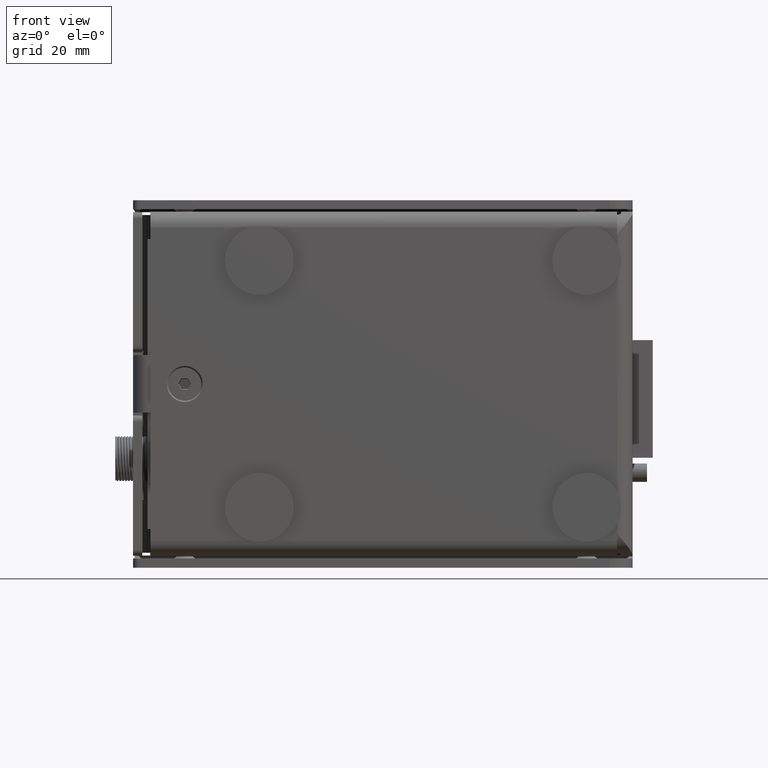
[diagram: clean part render]
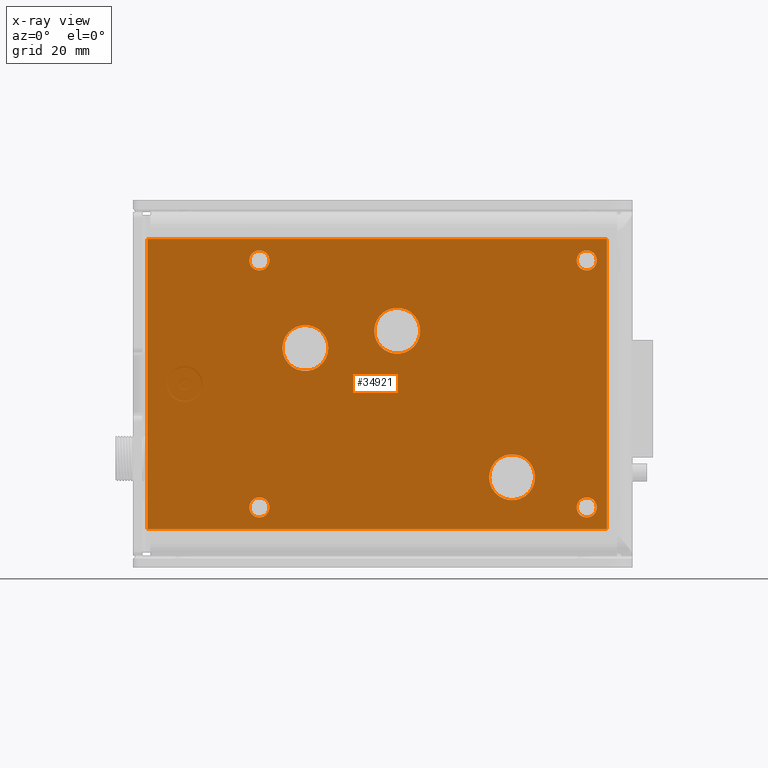
[diagram: x-ray — body ghosted, one internal face saturated and labeled with its STEP entity id]
A machine part, front view, then the same camera in x-ray: the body is ghosted and one INTERNAL B-rep face — a face not visible from any outside direction — is saturated and labeled: STEP entity #34921.
In plain terms, the highlighted planar face has unit normal (0, -1, -0).
Its self-contained STEP definition (entity closure, byte-faithful):
#209 = ORIENTED_EDGE ( 'NONE', *, *, #49311, .T. ) ;
#1018 = EDGE_CURVE ( 'NONE', #69272, #68647, #8504, .T. ) ;
#1236 = DIRECTION ( 'NONE',  ( -1.000000000000000000, 0.0000000000000000000, 0.0000000000000000000 ) ) ;
#1278 = ORIENTED_EDGE ( 'NONE', *, *, #20421, .T. ) ;
#1501 = LINE ( 'NONE', #22551, #15646 ) ;
#2058 = CARTESIAN_POINT ( 'NONE',  ( -10.30300153493772400, 28.17412546596318300, 6.250000000000121700 ) ) ;
#2371 = DIRECTION ( 'NONE',  ( -9.051608351169608300E-018, 1.000000000000000000, 6.083789481314589600E-018 ) ) ;
#2915 = FACE_OUTER_BOUND ( 'NONE', #8466, .T. ) ;
#3125 = CARTESIAN_POINT ( 'NONE',  ( 29.69699846506279800, 28.17412546596318300, -16.25000000000016300 ) ) ;
#5222 = VERTEX_POINT ( 'NONE', #21833 ) ;
#5411 = DIRECTION ( 'NONE',  ( -1.000000000000000000, 0.0000000000000000000, 0.0000000000000000000 ) ) ;
#5781 = CARTESIAN_POINT ( 'NONE',  ( 38.69699846506279100, 28.17412546596318300, 21.50000000000020600 ) ) ;
#6286 = AXIS2_PLACEMENT_3D ( 'NONE', #19122, #51970, #35978 ) ;
#6945 = EDGE_LOOP ( 'NONE', ( #33854, #59130 ) ) ;
#7050 = CARTESIAN_POINT ( 'NONE',  ( 42.19699846506279100, 28.17412546596318600, -25.25000000000035500 ) ) ;
#7279 = EDGE_CURVE ( 'NONE', #9228, #45597, #56136, .T. ) ;
#7768 = ORIENTED_EDGE ( 'NONE', *, *, #63933, .T. ) ;
#7812 = AXIS2_PLACEMENT_3D ( 'NONE', #41694, #63529, #63313 ) ;
#7937 = FACE_BOUND ( 'NONE', #9195, .T. ) ;
#8466 = EDGE_LOOP ( 'NONE', ( #209, #7768, #64048, #1278 ) ) ;
#8504 = CIRCLE ( 'NONE', #7812, 1.750000000000022400 ) ;
#8587 = CARTESIAN_POINT ( 'NONE',  ( -10.30300153493772400, 28.17412546596318300, 6.250000000000121700 ) ) ;
#8707 = CIRCLE ( 'NONE', #17713, 1.750000000000022400 ) ;
#9195 = EDGE_LOOP ( 'NONE', ( #25107, #17819 ) ) ;
#9228 = VERTEX_POINT ( 'NONE', #3125 ) ;
#9453 = DIRECTION ( 'NONE',  ( -9.051608351169608300E-018, 1.000000000000000000, 6.083789481314589600E-018 ) ) ;
#10610 = CARTESIAN_POINT ( 'NONE',  ( -18.30300153493777400, 28.17412546596318300, 21.50000000000020600 ) ) ;
#10785 = CIRCLE ( 'NONE', #42452, 1.750000000000022400 ) ;
#11570 = DIRECTION ( 'NONE',  ( 1.000000000000000000, 0.0000000000000000000, 0.0000000000000000000 ) ) ;
#11786 = CARTESIAN_POINT ( 'NONE',  ( 40.44699846506281200, 28.17412546596318300, 21.50000000000020600 ) ) ;
#13117 = LINE ( 'NONE', #34396, #19870 ) ;
#13590 = CARTESIAN_POINT ( 'NONE',  ( -18.30300153493777400, 28.17412546596318300, 21.50000000000020600 ) ) ;
#13761 = FACE_BOUND ( 'NONE', #39740, .T. ) ;
#14699 = DIRECTION ( 'NONE',  ( 1.000000000000000000, 0.0000000000000000000, 0.0000000000000000000 ) ) ;
#14732 = CIRCLE ( 'NONE', #65665, 1.750000000000018900 ) ;
#15126 = CARTESIAN_POINT ( 'NONE',  ( 40.44699846506281200, 28.17412546596318600, -21.50000000000019900 ) ) ;
#15191 = CARTESIAN_POINT ( 'NONE',  ( 38.69699846506279100, 28.17412546596318600, -21.50000000000019900 ) ) ;
#15646 = VECTOR ( 'NONE', #60346, 1000.000000000000000 ) ;
#15809 = CARTESIAN_POINT ( 'NONE',  ( 21.69699846506275200, 28.17412546596318300, -16.25000000000016300 ) ) ;
#16202 = AXIS2_PLACEMENT_3D ( 'NONE', #66781, #39517, #40441 ) ;
#16291 = VERTEX_POINT ( 'NONE', #15126 ) ;
#16815 = EDGE_CURVE ( 'NONE', #27238, #68976, #63596, .T. ) ;
#17116 = FACE_BOUND ( 'NONE', #37799, .T. ) ;
#17623 = CARTESIAN_POINT ( 'NONE',  ( -20.05300153493777800, 28.17412546596318300, -21.50000000000017100 ) ) ;
#17713 = AXIS2_PLACEMENT_3D ( 'NONE', #15191, #58175, #26011 ) ;
#17819 = ORIENTED_EDGE ( 'NONE', *, *, #1018, .F. ) ;
#17921 = VERTEX_POINT ( 'NONE', #65197 ) ;
#18124 = DIRECTION ( 'NONE',  ( -9.051608351169608300E-018, 1.000000000000000000, 6.083789481314589600E-018 ) ) ;
#18389 = ORIENTED_EDGE ( 'NONE', *, *, #43042, .F. ) ;
#18695 = VECTOR ( 'NONE', #22795, 1000.000000000000000 ) ;
#19122 = CARTESIAN_POINT ( 'NONE',  ( 2.196998465062420400, 28.17412546596318300, 1.367128981543559100E-014 ) ) ;
#19158 = DIRECTION ( 'NONE',  ( -1.000000000000000000, 0.0000000000000000000, 0.0000000000000000000 ) ) ;
#19682 = AXIS2_PLACEMENT_3D ( 'NONE', #30770, #9453, #52580 ) ;
#19870 = VECTOR ( 'NONE', #45206, 1000.000000000000000 ) ;
#19900 = CIRCLE ( 'NONE', #53234, 1.750000000000022400 ) ;
#20132 = VERTEX_POINT ( 'NONE', #30533 ) ;
#20421 = EDGE_CURVE ( 'NONE', #61836, #41865, #1501, .T. ) ;
#21344 = CIRCLE ( 'NONE', #16202, 4.000000000000049700 ) ;
#21833 = CARTESIAN_POINT ( 'NONE',  ( -37.80300153493797000, 28.17412546596317900, 25.25000000000041200 ) ) ;
#22333 = CARTESIAN_POINT ( 'NONE',  ( 5.696998465062449700, 28.17412546596318300, 9.250000000000124300 ) ) ;
#22410 = VERTEX_POINT ( 'NONE', #50829 ) ;
#22551 = CARTESIAN_POINT ( 'NONE',  ( 42.19699846506279100, 28.17412546596318300, 25.25000000000041200 ) ) ;
#22629 = DIRECTION ( 'NONE',  ( 1.000000000000000000, 0.0000000000000000000, 0.0000000000000000000 ) ) ;
#22795 = DIRECTION ( 'NONE',  ( -1.000000000000000000, -9.051608351169255500E-018, -1.561251128379124800E-017 ) ) ;
#23085 = AXIS2_PLACEMENT_3D ( 'NONE', #8587, #34619, #19158 ) ;
#23448 = DIRECTION ( 'NONE',  ( -9.051608351169608300E-018, 1.000000000000000000, 6.083789481314589600E-018 ) ) ;
#25107 = ORIENTED_EDGE ( 'NONE', *, *, #29504, .F. ) ;
#25312 = CARTESIAN_POINT ( 'NONE',  ( -20.05300153493777100, 28.17412546596318300, 21.50000000000020600 ) ) ;
#25585 = EDGE_CURVE ( 'NONE', #20132, #54462, #27894, .T. ) ;
#26011 = DIRECTION ( 'NONE',  ( 1.000000000000000000, 0.0000000000000000000, 0.0000000000000000000 ) ) ;
#26499 = VERTEX_POINT ( 'NONE', #65158 ) ;
#27040 = DIRECTION ( 'NONE',  ( -9.051608351169608300E-018, 1.000000000000000000, 6.083789481314589600E-018 ) ) ;
#27238 = VERTEX_POINT ( 'NONE', #66804 ) ;
#27883 = AXIS2_PLACEMENT_3D ( 'NONE', #10610, #27040, #11570 ) ;
#27894 = CIRCLE ( 'NONE', #27883, 1.750000000000018900 ) ;
#28231 = CARTESIAN_POINT ( 'NONE',  ( 25.69699846506279800, 28.17412546596318300, -16.25000000000016300 ) ) ;
#28691 = CARTESIAN_POINT ( 'NONE',  ( 42.19699846506279100, 28.17412546596318600, -25.25000000000035500 ) ) ;
#28867 = EDGE_CURVE ( 'NONE', #17921, #16291, #8707, .T. ) ;
#29238 = CIRCLE ( 'NONE', #32900, 1.750000000000018900 ) ;
#29293 = CARTESIAN_POINT ( 'NONE',  ( -6.303001534937724400, 28.17412546596318300, 6.250000000000121700 ) ) ;
#29357 = DIRECTION ( 'NONE',  ( 1.000000000000000000, 0.0000000000000000000, 0.0000000000000000000 ) ) ;
#29362 = ORIENTED_EDGE ( 'NONE', *, *, #34611, .F. ) ;
#29504 = EDGE_CURVE ( 'NONE', #68647, #69272, #10785, .T. ) ;
#29640 = AXIS2_PLACEMENT_3D ( 'NONE', #2058, #23448, #55342 ) ;
#30012 = CIRCLE ( 'NONE', #19682, 4.000000000000048800 ) ;
#30533 = CARTESIAN_POINT ( 'NONE',  ( -16.55300153493775600, 28.17412546596318300, 21.50000000000020600 ) ) ;
#30770 = CARTESIAN_POINT ( 'NONE',  ( 25.69699846506279800, 28.17412546596318300, -16.25000000000016300 ) ) ;
#31313 = ORIENTED_EDGE ( 'NONE', *, *, #57269, .F. ) ;
#31385 = FACE_BOUND ( 'NONE', #39501, .T. ) ;
#32002 = ORIENTED_EDGE ( 'NONE', *, *, #50872, .F. ) ;
#32677 = EDGE_CURVE ( 'NONE', #45597, #9228, #30012, .T. ) ;
#32703 = VECTOR ( 'NONE', #34352, 1000.000000000000000 ) ;
#32816 = ORIENTED_EDGE ( 'NONE', *, *, #56618, .F. ) ;
#32900 = AXIS2_PLACEMENT_3D ( 'NONE', #44167, #18124, #22629 ) ;
#33093 = DIRECTION ( 'NONE',  ( -9.051608351169608300E-018, 1.000000000000000000, 6.083789481314589600E-018 ) ) ;
#33854 = ORIENTED_EDGE ( 'NONE', *, *, #32677, .F. ) ;
#34352 = DIRECTION ( 'NONE',  ( -1.561251128379124800E-017, -6.083789481314346200E-018, 1.000000000000000000 ) ) ;
#34396 = CARTESIAN_POINT ( 'NONE',  ( 42.19699846506279100, 28.17412546596318300, 25.25000000000041200 ) ) ;
#34611 = EDGE_CURVE ( 'NONE', #68976, #27238, #49871, .T. ) ;
#34619 = DIRECTION ( 'NONE',  ( -9.051608351169608300E-018, 1.000000000000000000, 6.083789481314589600E-018 ) ) ;
#34921 = ADVANCED_FACE ( 'NONE', ( #54926, #7937, #45699, #31385, #17116, #2915, #13761, #58295 ), #51268, .F. ) ;
#35850 = CARTESIAN_POINT ( 'NONE',  ( 36.94699846506279100, 28.17412546596318300, 21.50000000000020600 ) ) ;
#35867 = ORIENTED_EDGE ( 'NONE', *, *, #25585, .F. ) ;
#35978 = DIRECTION ( 'NONE',  ( -1.000000000000000000, -9.051608351169257000E-018, -1.561251128379125200E-017 ) ) ;
#37478 = EDGE_CURVE ( 'NONE', #54462, #20132, #51902, .T. ) ;
#37799 = EDGE_LOOP ( 'NONE', ( #32816, #18389 ) ) ;
#39119 = EDGE_CURVE ( 'NONE', #5222, #61836, #13117, .T. ) ;
#39501 = EDGE_LOOP ( 'NONE', ( #31313, #43726 ) ) ;
#39517 = DIRECTION ( 'NONE',  ( -9.051608351169608300E-018, 1.000000000000000000, 6.083789481314589600E-018 ) ) ;
#39740 = EDGE_LOOP ( 'NONE', ( #45384, #29362 ) ) ;
#39782 = DIRECTION ( 'NONE',  ( 1.000000000000000000, 0.0000000000000000000, 0.0000000000000000000 ) ) ;
#40441 = DIRECTION ( 'NONE',  ( -1.000000000000000000, 0.0000000000000000000, 0.0000000000000000000 ) ) ;
#41469 = CARTESIAN_POINT ( 'NONE',  ( -18.30300153493778100, 28.17412546596318300, -21.50000000000017100 ) ) ;
#41694 = CARTESIAN_POINT ( 'NONE',  ( 38.69699846506279100, 28.17412546596318300, 21.50000000000020600 ) ) ;
#41865 = VERTEX_POINT ( 'NONE', #28691 ) ;
#42452 = AXIS2_PLACEMENT_3D ( 'NONE', #5781, #50806, #39782 ) ;
#43042 = EDGE_CURVE ( 'NONE', #22410, #63941, #21344, .T. ) ;
#43648 = EDGE_CURVE ( 'NONE', #26499, #49065, #29238, .T. ) ;
#43726 = ORIENTED_EDGE ( 'NONE', *, *, #28867, .F. ) ;
#44167 = CARTESIAN_POINT ( 'NONE',  ( -18.30300153493778100, 28.17412546596318300, -21.50000000000017100 ) ) ;
#44453 = CARTESIAN_POINT ( 'NONE',  ( 1.696998465062399900, 28.17412546596318300, 9.250000000000124300 ) ) ;
#45206 = DIRECTION ( 'NONE',  ( 1.000000000000000000, 9.051608351169255500E-018, 1.561251128379124800E-017 ) ) ;
#45384 = ORIENTED_EDGE ( 'NONE', *, *, #16815, .F. ) ;
#45597 = VERTEX_POINT ( 'NONE', #15809 ) ;
#45699 = FACE_BOUND ( 'NONE', #54275, .T. ) ;
#46896 = ORIENTED_EDGE ( 'NONE', *, *, #37478, .F. ) ;
#48895 = LINE ( 'NONE', #7050, #18695 ) ;
#49065 = VERTEX_POINT ( 'NONE', #17623 ) ;
#49311 = EDGE_CURVE ( 'NONE', #41865, #50509, #48895, .T. ) ;
#49627 = CARTESIAN_POINT ( 'NONE',  ( -37.80300153493797000, 28.17412546596317900, 25.25000000000041200 ) ) ;
#49871 = CIRCLE ( 'NONE', #29640, 4.000000000000048800 ) ;
#50379 = LINE ( 'NONE', #49627, #32703 ) ;
#50509 = VERTEX_POINT ( 'NONE', #58021 ) ;
#50806 = DIRECTION ( 'NONE',  ( -9.051608351169608300E-018, 1.000000000000000000, 6.083789481314589600E-018 ) ) ;
#50829 = CARTESIAN_POINT ( 'NONE',  ( 9.696998465062449700, 28.17412546596318300, 9.250000000000124300 ) ) ;
#50872 = EDGE_CURVE ( 'NONE', #49065, #26499, #14732, .T. ) ;
#51268 = PLANE ( 'NONE',  #6286 ) ;
#51902 = CIRCLE ( 'NONE', #61728, 1.750000000000018900 ) ;
#51970 = DIRECTION ( 'NONE',  ( 9.051608351169257000E-018, -1.000000000000000000, -6.083789481314589600E-018 ) ) ;
#52245 = DIRECTION ( 'NONE',  ( 1.000000000000000000, 0.0000000000000000000, 0.0000000000000000000 ) ) ;
#52580 = DIRECTION ( 'NONE',  ( -1.000000000000000000, 0.0000000000000000000, 0.0000000000000000000 ) ) ;
#53234 = AXIS2_PLACEMENT_3D ( 'NONE', #63739, #62847, #52245 ) ;
#53414 = ORIENTED_EDGE ( 'NONE', *, *, #43648, .F. ) ;
#54275 = EDGE_LOOP ( 'NONE', ( #35867, #46896 ) ) ;
#54462 = VERTEX_POINT ( 'NONE', #25312 ) ;
#54926 = FACE_BOUND ( 'NONE', #63103, .T. ) ;
#55235 = CIRCLE ( 'NONE', #56892, 4.000000000000049700 ) ;
#55342 = DIRECTION ( 'NONE',  ( -1.000000000000000000, 0.0000000000000000000, 0.0000000000000000000 ) ) ;
#56136 = CIRCLE ( 'NONE', #63959, 4.000000000000048800 ) ;
#56618 = EDGE_CURVE ( 'NONE', #63941, #22410, #55235, .T. ) ;
#56892 = AXIS2_PLACEMENT_3D ( 'NONE', #22333, #33093, #5411 ) ;
#57269 = EDGE_CURVE ( 'NONE', #16291, #17921, #19900, .T. ) ;
#58021 = CARTESIAN_POINT ( 'NONE',  ( -37.80300153493797000, 28.17412546596318300, -25.25000000000035500 ) ) ;
#58175 = DIRECTION ( 'NONE',  ( -9.051608351169608300E-018, 1.000000000000000000, 6.083789481314589600E-018 ) ) ;
#58295 = FACE_BOUND ( 'NONE', #6945, .T. ) ;
#59130 = ORIENTED_EDGE ( 'NONE', *, *, #7279, .F. ) ;
#59733 = DIRECTION ( 'NONE',  ( -9.051608351169608300E-018, 1.000000000000000000, 6.083789481314589600E-018 ) ) ;
#60198 = CARTESIAN_POINT ( 'NONE',  ( 42.19699846506279100, 28.17412546596318300, 25.25000000000041200 ) ) ;
#60346 = DIRECTION ( 'NONE',  ( 1.561251128379124800E-017, 6.083789481314346200E-018, -1.000000000000000000 ) ) ;
#61728 = AXIS2_PLACEMENT_3D ( 'NONE', #13590, #2371, #29357 ) ;
#61836 = VERTEX_POINT ( 'NONE', #60198 ) ;
#62847 = DIRECTION ( 'NONE',  ( -9.051608351169608300E-018, 1.000000000000000000, 6.083789481314589600E-018 ) ) ;
#63103 = EDGE_LOOP ( 'NONE', ( #53414, #32002 ) ) ;
#63313 = DIRECTION ( 'NONE',  ( 1.000000000000000000, 0.0000000000000000000, 0.0000000000000000000 ) ) ;
#63529 = DIRECTION ( 'NONE',  ( -9.051608351169608300E-018, 1.000000000000000000, 6.083789481314589600E-018 ) ) ;
#63596 = CIRCLE ( 'NONE', #23085, 4.000000000000048800 ) ;
#63739 = CARTESIAN_POINT ( 'NONE',  ( 38.69699846506279100, 28.17412546596318600, -21.50000000000019900 ) ) ;
#63933 = EDGE_CURVE ( 'NONE', #50509, #5222, #50379, .T. ) ;
#63941 = VERTEX_POINT ( 'NONE', #44453 ) ;
#63959 = AXIS2_PLACEMENT_3D ( 'NONE', #28231, #59733, #1236 ) ;
#64048 = ORIENTED_EDGE ( 'NONE', *, *, #39119, .T. ) ;
#65158 = CARTESIAN_POINT ( 'NONE',  ( -16.55300153493776300, 28.17412546596318300, -21.50000000000017100 ) ) ;
#65197 = CARTESIAN_POINT ( 'NONE',  ( 36.94699846506279100, 28.17412546596318600, -21.50000000000019900 ) ) ;
#65665 = AXIS2_PLACEMENT_3D ( 'NONE', #41469, #68527, #14699 ) ;
#66781 = CARTESIAN_POINT ( 'NONE',  ( 5.696998465062449700, 28.17412546596318300, 9.250000000000124300 ) ) ;
#66804 = CARTESIAN_POINT ( 'NONE',  ( -14.30300153493777400, 28.17412546596318300, 6.250000000000121700 ) ) ;
#68527 = DIRECTION ( 'NONE',  ( -9.051608351169608300E-018, 1.000000000000000000, 6.083789481314589600E-018 ) ) ;
#68647 = VERTEX_POINT ( 'NONE', #11786 ) ;
#68976 = VERTEX_POINT ( 'NONE', #29293 ) ;
#69272 = VERTEX_POINT ( 'NONE', #35850 ) ;